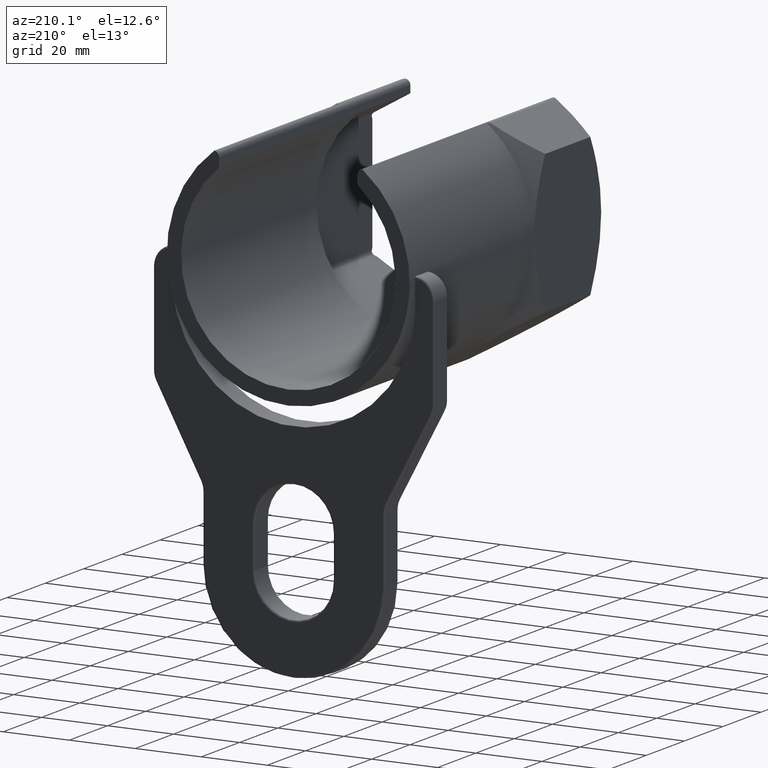
[diagram: clean part render]
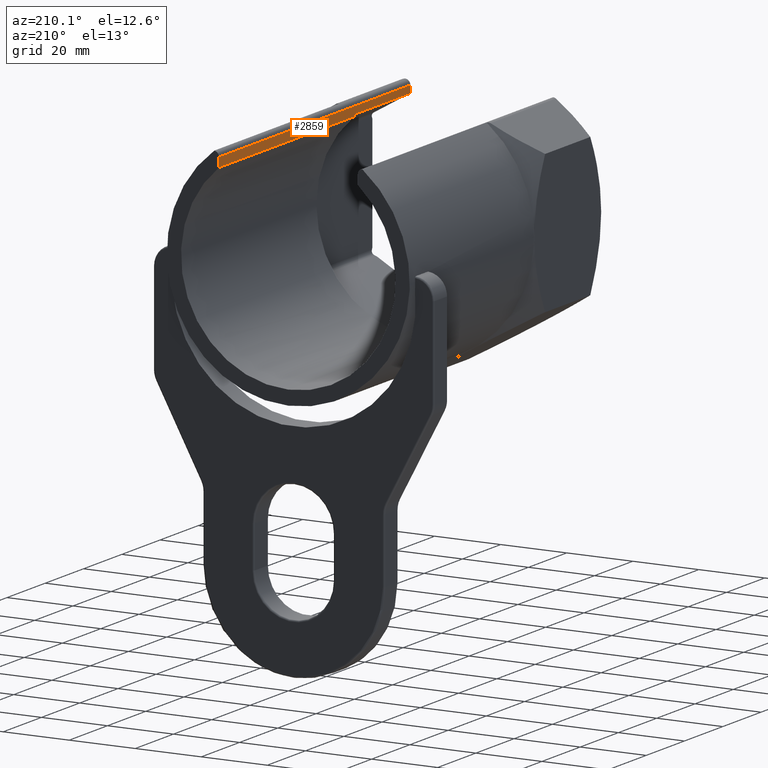
[diagram: same view with one face highlighted and labeled with its STEP entity id]
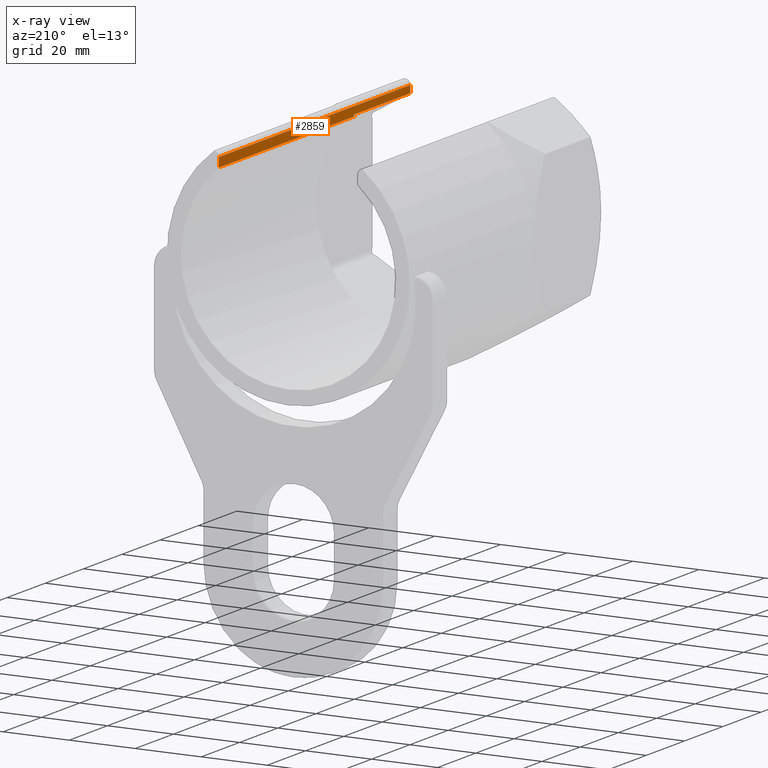
[diagram: x-ray of the same camera — body ghosted, the highlighted face saturated]
A machine part, auxiliary view. The second image highlights one B-rep face of the part: STEP entity #2859.
The next image is the same camera in x-ray: the body ghosted, the highlighted face saturated — about 0% of this face is hidden behind the body in this view.
In plain terms, the highlighted planar face has unit normal (1, 0, 0).
Its self-contained STEP definition (entity closure, byte-faithful):
#35 = ORIENTED_EDGE ( 'NONE', *, *, #36, .T. ) ;
#36 = EDGE_CURVE ( 'NONE', #37, #3050, #638, .T. ) ;
#37 = VERTEX_POINT ( 'NONE', #634 ) ;
#38 = EDGE_CURVE ( 'NONE', #156, #37, #633, .T. ) ;
#39 = ORIENTED_EDGE ( 'NONE', *, *, #38, .T. ) ;
#40 = ORIENTED_EDGE ( 'NONE', *, *, #196, .T. ) ;
#41 = EDGE_CURVE ( 'NONE', #323, #43, #629, .T. ) ;
#42 = ORIENTED_EDGE ( 'NONE', *, *, #41, .F. ) ;
#43 = VERTEX_POINT ( 'NONE', #625 ) ;
#44 = EDGE_CURVE ( 'NONE', #3051, #43, #687, .T. ) ;
#46 = ORIENTED_EDGE ( 'NONE', *, *, #44, .T. ) ;
#156 = VERTEX_POINT ( 'NONE', #881 ) ;
#196 = EDGE_CURVE ( 'NONE', #323, #156, #929, .T. ) ;
#323 = VERTEX_POINT ( 'NONE', #1166 ) ;
#625 = CARTESIAN_POINT ( 'NONE',  ( 21.00000000000000700, 100.0000000000000000, 27.60436305490764000 ) ) ;
#626 = DIRECTION ( 'NONE',  ( 0.0000000000000000000, 0.0000000000000000000, 1.000000000000000000 ) ) ;
#627 = VECTOR ( 'NONE', #626, 1000.000000000000000 ) ;
#628 = CARTESIAN_POINT ( 'NONE',  ( 21.00000000000000700, 100.0000000000000000, 30.22714241859567300 ) ) ;
#629 = LINE ( 'NONE', #628, #627 ) ;
#630 = DIRECTION ( 'NONE',  ( -6.227232299345382500E-016, 0.0000000000000000000, 1.000000000000000000 ) ) ;
#631 = VECTOR ( 'NONE', #630, 1000.000000000000000 ) ;
#632 = CARTESIAN_POINT ( 'NONE',  ( 21.00000000000000700, 29.30597966083865200, 24.80423350962491800 ) ) ;
#633 = LINE ( 'NONE', #632, #631 ) ;
#634 = CARTESIAN_POINT ( 'NONE',  ( 21.00000000000000700, 29.30597966083865200, 25.40341184434353000 ) ) ;
#635 = DIRECTION ( 'NONE',  ( 0.0000000000000000000, -1.000000000000000000, 0.0000000000000000000 ) ) ;
#636 = VECTOR ( 'NONE', #635, 1000.000000000000000 ) ;
#637 = CARTESIAN_POINT ( 'NONE',  ( 21.00000000000000700, 35.00000000000000000, 25.40341184434353000 ) ) ;
#638 = LINE ( 'NONE', #637, #636 ) ;
#684 = DIRECTION ( 'NONE',  ( 0.0000000000000000000, 1.000000000000000000, 0.0000000000000000000 ) ) ;
#685 = VECTOR ( 'NONE', #684, 1000.000000000000000 ) ;
#686 = CARTESIAN_POINT ( 'NONE',  ( 21.00000000000000400, 35.00000000000000000, 27.60436305490764000 ) ) ;
#687 = LINE ( 'NONE', #686, #685 ) ;
#881 = CARTESIAN_POINT ( 'NONE',  ( 21.00000000000000700, 29.30597966083865200, 24.80423350962492200 ) ) ;
#926 = DIRECTION ( 'NONE',  ( 0.0000000000000000000, -1.000000000000000000, 0.0000000000000000000 ) ) ;
#927 = VECTOR ( 'NONE', #926, 1000.000000000000000 ) ;
#928 = CARTESIAN_POINT ( 'NONE',  ( 21.00000000000000700, 35.00000000000000000, 24.80423350962492200 ) ) ;
#929 = LINE ( 'NONE', #928, #927 ) ;
#1166 = CARTESIAN_POINT ( 'NONE',  ( 21.00000000000000700, 100.0000000000000000, 24.80423350962492200 ) ) ;
#1866 = FACE_OUTER_BOUND ( 'NONE', #2855, .T. ) ;
#1867 = CARTESIAN_POINT ( 'NONE',  ( 21.00000000000000700, 35.00000000000000000, 24.80423350962491800 ) ) ;
#1869 = PLANE ( 'NONE',  #1924 ) ;
#1922 = DIRECTION ( 'NONE',  ( 6.227232299345382500E-016, 0.0000000000000000000, -1.000000000000000000 ) ) ;
#1923 = DIRECTION ( 'NONE',  ( 1.000000000000000000, 0.0000000000000000000, 6.227232299345382500E-016 ) ) ;
#1924 = AXIS2_PLACEMENT_3D ( 'NONE', #1867, #1923, #1922 ) ;
#2223 = CARTESIAN_POINT ( 'NONE',  ( 21.00000000000000400, 0.0000000000000000000, 27.60436305490764000 ) ) ;
#2224 = CARTESIAN_POINT ( 'NONE',  ( 21.00000000000001100, 0.0000000000000000000, 25.40341184434352700 ) ) ;
#2225 = DIRECTION ( 'NONE',  ( -6.227232299345381500E-016, 0.0000000000000000000, 1.000000000000000000 ) ) ;
#2226 = VECTOR ( 'NONE', #2225, 1000.000000000000000 ) ;
#2227 = CARTESIAN_POINT ( 'NONE',  ( 21.00000000000000700, 0.0000000000000000000, 24.80423350962491800 ) ) ;
#2228 = LINE ( 'NONE', #2227, #2226 ) ;
#2855 = EDGE_LOOP ( 'NONE', ( #2858, #46, #42, #40, #39, #35 ) ) ;
#2858 = ORIENTED_EDGE ( 'NONE', *, *, #3049, .T. ) ;
#2859 = ADVANCED_FACE ( 'NONE', ( #1866 ), #1869, .F. ) ;
#3049 = EDGE_CURVE ( 'NONE', #3050, #3051, #2228, .T. ) ;
#3050 = VERTEX_POINT ( 'NONE', #2224 ) ;
#3051 = VERTEX_POINT ( 'NONE', #2223 ) ;